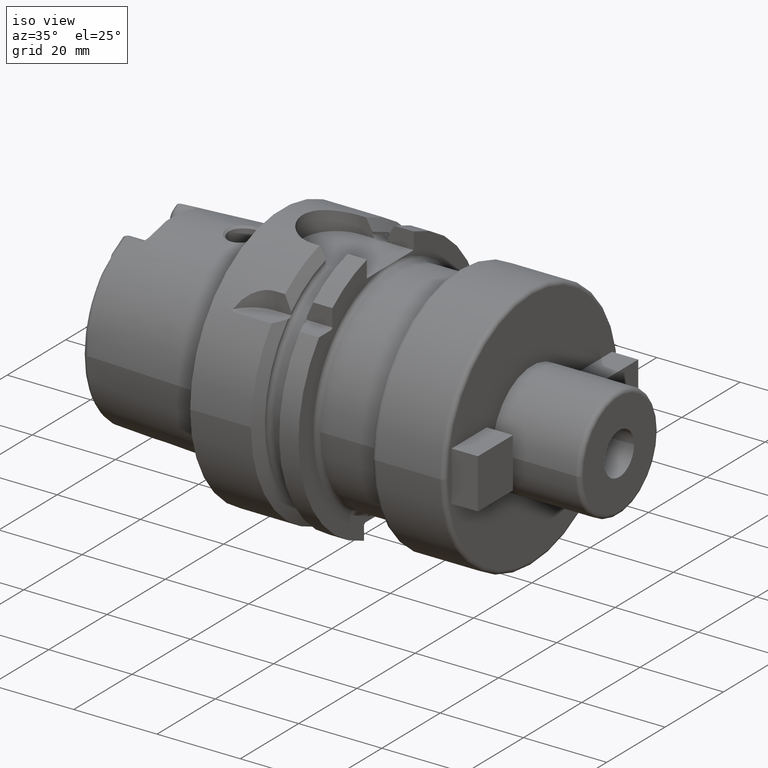
[diagram: clean part render]
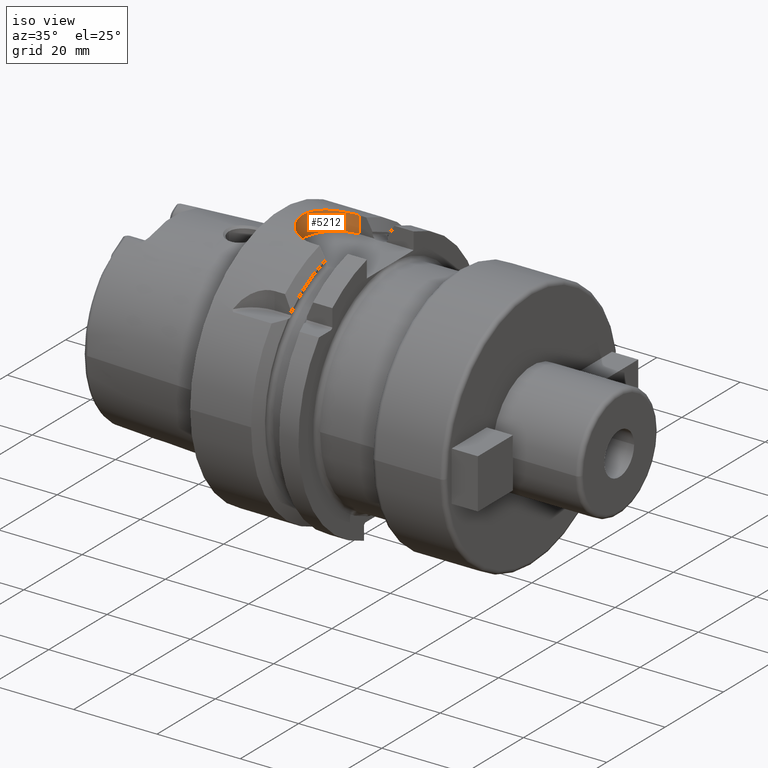
[diagram: same view with one face highlighted and labeled with its STEP entity id]
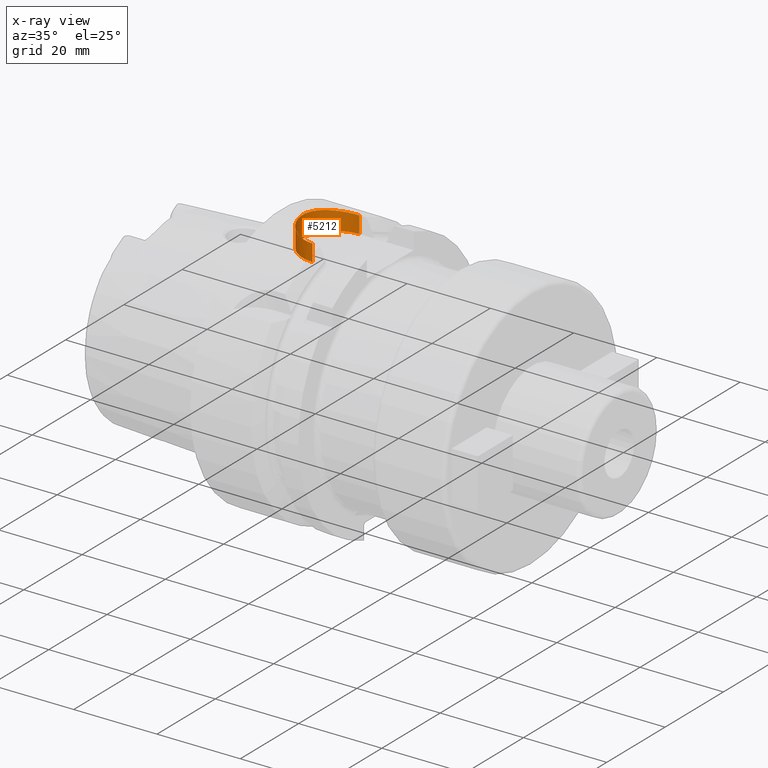
[diagram: x-ray of the same camera — body ghosted, the highlighted face saturated]
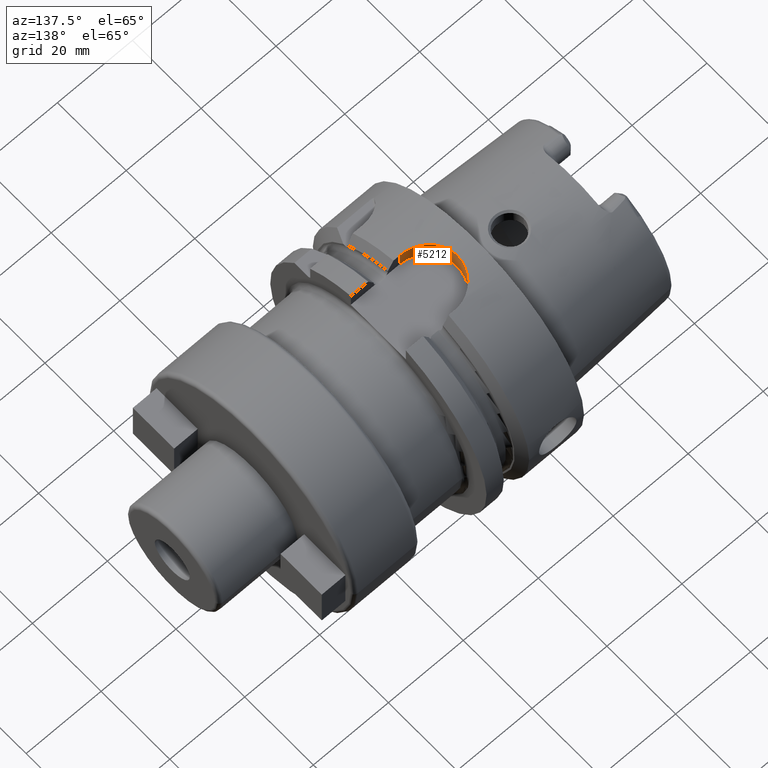
[diagram: same view with one face highlighted and labeled with its STEP entity id]
A machine part, iso view. The second image highlights one B-rep face of the part: STEP entity #5212.
The next image is the same camera in x-ray: the body ghosted, the highlighted face saturated — about 0% of this face is hidden behind the body in this view.
A second angle (auxiliary view) of the same face is appended — the face is thin or edge-on in the first view.
In plain terms, the highlighted cylindrical surface (partial cylindrical patch) has radius 8.0175 mm, axis along (0, 0, 1).
Its self-contained STEP definition (entity closure, byte-faithful):
#1150=CARTESIAN_POINT('',(1.29675E1,-8.0175E0,3.046259499370E1));
#1151=CARTESIAN_POINT('',(1.262029466193E1,-8.0175E0,3.046259499370E1));
#1152=CARTESIAN_POINT('',(1.193292082029E1,-7.972856309682E0,3.047439785027E1));
#1153=CARTESIAN_POINT('',(1.091425902188E1,-7.773176787902E0,3.052624418591E1));
#1154=CARTESIAN_POINT('',(9.934126849983E0,-7.445404290975E0,3.060831570964E1));
#1155=CARTESIAN_POINT('',(9.004286205686E0,-6.994846174415E0,3.071501370342E1));
#1156=CARTESIAN_POINT('',(8.138619971222E0,-6.428343040649E0,3.083929437245E1));
#1157=CARTESIAN_POINT('',(7.341033244269E0,-5.744094981007E0,3.097488281900E1));
#1158=CARTESIAN_POINT('',(6.636610015904E0,-4.956823973346E0,3.111134005505E1));
#1159=CARTESIAN_POINT('',(6.043298615168E0,-4.087231355503E0,3.123817795333E1));
#1160=CARTESIAN_POINT('',(5.564354260648E0,-3.139626798488E0,3.134839057540E1));
#1161=CARTESIAN_POINT('',(5.208675508384E0,-2.115659667041E0,3.143476377212E1));
#1162=CARTESIAN_POINT('',(4.995564432998E0,-1.053473182399E0,3.148835416009E1));
#1163=CARTESIAN_POINT('',(4.927168873806E0,9.826508337445E-4,3.150583538732E1));
#1164=CARTESIAN_POINT('',(4.995760366771E0,1.054869977933E0,3.148830421554E1));
#1165=CARTESIAN_POINT('',(5.209100296272E0,2.117206961075E0,3.143465845843E1));
#1166=CARTESIAN_POINT('',(5.564768023101E0,3.140504656583E0,3.134829355759E1));
#1167=CARTESIAN_POINT('',(6.043465163200E0,4.087475455639E0,3.123814225608E1));
#1168=CARTESIAN_POINT('',(6.636650004810E0,4.956867733051E0,3.111133228169E1));
#1169=CARTESIAN_POINT('',(7.340978157719E0,5.744022439956E0,3.097489453754E1));
#1170=CARTESIAN_POINT('',(8.138191392118E0,6.427992830706E0,3.083936557780E1));
#1171=CARTESIAN_POINT('',(9.003473595842E0,6.994378480458E0,3.071512050332E1));
#1172=CARTESIAN_POINT('',(9.933336680083E0,7.445092599368E0,3.060839241432E1));
#1173=CARTESIAN_POINT('',(1.091365443769E1,7.773025904739E0,3.052628299010E1));
#1174=CARTESIAN_POINT('',(1.193250504209E1,7.972814414214E0,3.047440893684E1));
#1175=CARTESIAN_POINT('',(1.262014082393E1,8.0175E0,3.046259499370E1));
#1176=CARTESIAN_POINT('',(1.29675E1,8.0175E0,3.046259499370E1));
#1532=CARTESIAN_POINT('',(1.29675E1,0.E0,2.64E1));
#1533=DIRECTION('',(0.E0,0.E0,1.E0));
#1534=DIRECTION('',(0.E0,1.E0,0.E0));
#1535=AXIS2_PLACEMENT_3D('',#1532,#1533,#1534);
#1541=DIRECTION('',(0.E0,0.E0,1.E0));
#1542=VECTOR('',#1541,4.062594993697E0);
#1543=CARTESIAN_POINT('',(1.29675E1,-8.0175E0,2.64E1));
#1544=LINE('',#1543,#1542);
#1585=DIRECTION('',(0.E0,0.E0,1.E0));
#1586=VECTOR('',#1585,4.062594993697E0);
#1587=CARTESIAN_POINT('',(1.29675E1,8.0175E0,2.64E1));
#1588=LINE('',#1587,#1586);
#3140=CARTESIAN_POINT('',(1.29675E1,8.0175E0,2.64E1));
#3141=CARTESIAN_POINT('',(1.29675E1,-8.0175E0,2.64E1));
#3142=VERTEX_POINT('',#3140);
#3143=VERTEX_POINT('',#3141);
#3146=CARTESIAN_POINT('',(1.29675E1,8.0175E0,3.046259499370E1));
#3147=VERTEX_POINT('',#3146);
#3148=CARTESIAN_POINT('',(1.29675E1,-8.0175E0,3.046259499370E1));
#3149=VERTEX_POINT('',#3148);
#5201=CARTESIAN_POINT('',(1.29675E1,0.E0,2.64E1));
#5202=DIRECTION('',(0.E0,0.E0,1.E0));
#5203=DIRECTION('',(1.E0,0.E0,0.E0));
#5204=AXIS2_PLACEMENT_3D('',#5201,#5202,#5203);
#5205=CYLINDRICAL_SURFACE('',#5204,8.0175E0);
#5206=ORIENTED_EDGE('',*,*,#5172,.F.);
#5207=ORIENTED_EDGE('',*,*,#5075,.T.);
#5208=ORIENTED_EDGE('',*,*,#5101,.T.);
#5209=ORIENTED_EDGE('',*,*,#4680,.T.);
#5210=EDGE_LOOP('',(#5206,#5207,#5208,#5209));
#5211=FACE_OUTER_BOUND('',#5210,.F.);
#5212=ADVANCED_FACE('',(#5211),#5205,.F.);
#1177=B_SPLINE_CURVE_WITH_KNOTS('',3,(#1150,#1151,#1152,#1153,#1154,#1155,#1156,
#1157,#1158,#1159,#1160,#1161,#1162,#1163,#1164,#1165,#1166,#1167,#1168,#1169,
#1170,#1171,#1172,#1173,#1174,#1175,#1176),.UNSPECIFIED.,.F.,.F.,(4,1,1,1,1,1,1,
1,1,1,1,1,1,1,1,1,1,1,1,1,1,1,1,1,4),(0.E0,4.166666666667E-2,8.333333333333E-2,
1.25E-1,1.666666666667E-1,2.083333333333E-1,2.5E-1,2.916666666667E-1,
3.333333333333E-1,3.75E-1,4.166666666667E-1,4.583333333333E-1,5.E-1,
5.416666666667E-1,5.833333333333E-1,6.25E-1,6.666666666667E-1,7.083333333333E-1,
7.5E-1,7.916666666667E-1,8.333333333333E-1,8.75E-1,9.166666666667E-1,
9.583333333333E-1,1.E0),.UNSPECIFIED.);
#1536=CIRCLE('',#1535,8.0175E0);
#4680=EDGE_CURVE('',#3149,#3147,#1177,.T.);
#5075=EDGE_CURVE('',#3142,#3143,#1536,.T.);
#5101=EDGE_CURVE('',#3143,#3149,#1544,.T.);
#5172=EDGE_CURVE('',#3142,#3147,#1588,.T.);